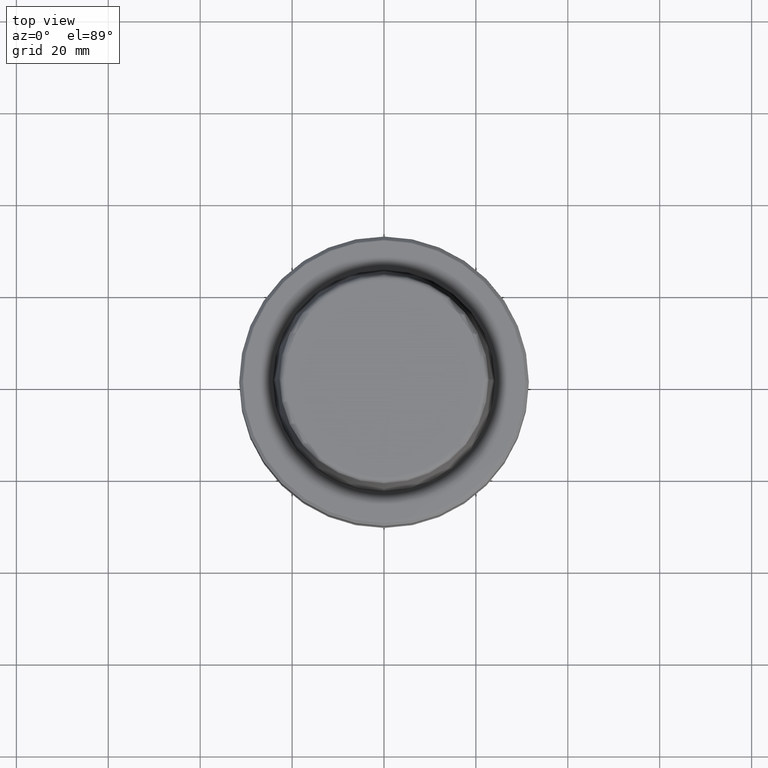
[diagram: clean part render]
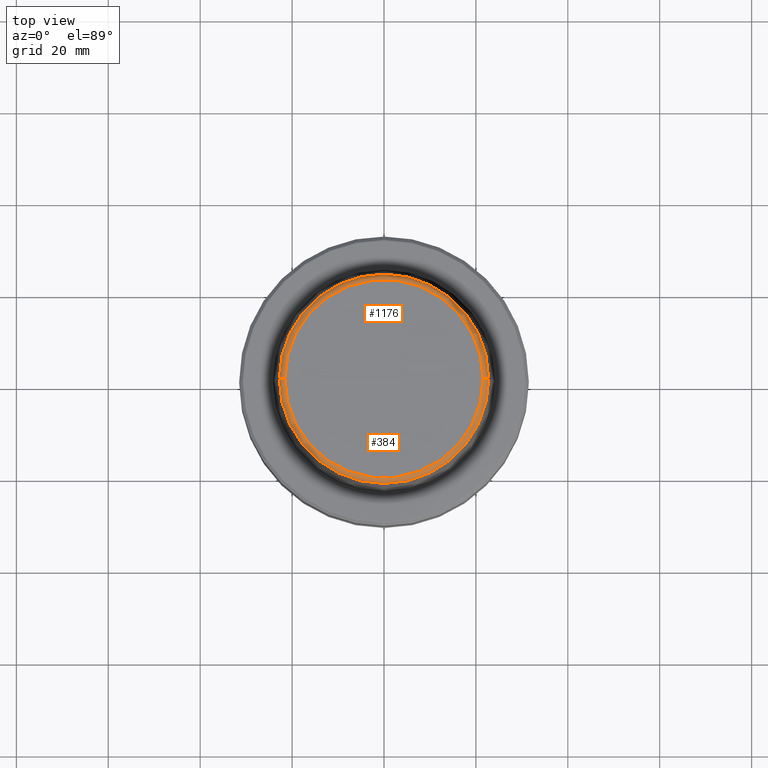
[diagram: same view with one multi-face feature highlighted, each face labeled with its STEP entity id]
A machine part, top view. The highlighted faces form ONE feature: a constant-radius fillet chain: 2 tangent blend faces with common blend radius 1.2 mm. The faces share edges in the B-rep.
Their STEP definitions:
[1] entity #1176 (Torus):
#46 = AXIS2_PLACEMENT_3D ( 'NONE', #935, #1028, #74 ) ;
#74 = DIRECTION ( 'NONE',  ( 1.000000000000000000, 0.0000000000000000000, 0.0000000000000000000 ) ) ;
#78 = CARTESIAN_POINT ( 'NONE',  ( -22.77957961851797100, 0.0000000000000000000, 30.76004333261571900 ) ) ;
#231 = VERTEX_POINT ( 'NONE', #1076 ) ;
#270 = FACE_OUTER_BOUND ( 'NONE', #586, .T. ) ;
#311 = ORIENTED_EDGE ( 'NONE', *, *, #1258, .F. ) ;
#336 = CIRCLE ( 'NONE', #46, 21.58108272732117100 ) ;
#358 = DIRECTION ( 'NONE',  ( 0.0000000000000000000, -1.000000000000000000, 0.0000000000000000000 ) ) ;
#372 = VERTEX_POINT ( 'NONE', #78 ) ;
#516 = VERTEX_POINT ( 'NONE', #1276 ) ;
#529 = DIRECTION ( 'NONE',  ( -1.000000000000000000, 1.224646799147353200E-016, 0.0000000000000000000 ) ) ;
#551 = CARTESIAN_POINT ( 'NONE',  ( 0.0000000000000000000, 0.0000000000000000000, 30.69999999999999200 ) ) ;
#581 = EDGE_CURVE ( 'NONE', #372, #981, #1251, .T. ) ;
#586 = EDGE_LOOP ( 'NONE', ( #1096, #928, #965, #311 ) ) ;
#684 = DIRECTION ( 'NONE',  ( 1.224646799147353200E-016, 1.000000000000000000, 0.0000000000000000000 ) ) ;
#691 = DIRECTION ( 'NONE',  ( -0.0000000000000000000, -0.0000000000000000000, 1.000000000000000000 ) ) ;
#694 = CIRCLE ( 'NONE', #730, 1.200000000000003100 ) ;
#730 = AXIS2_PLACEMENT_3D ( 'NONE', #938, #358, #1039 ) ;
#738 = EDGE_CURVE ( 'NONE', #231, #372, #908, .T. ) ;
#789 = CARTESIAN_POINT ( 'NONE',  ( -21.58108272732117100, 2.642920388414810300E-015, 30.69999999999999200 ) ) ;
#814 = CARTESIAN_POINT ( 'NONE',  ( 0.0000000000000000000, 0.0000000000000000000, 30.76004333261571900 ) ) ;
#840 = CARTESIAN_POINT ( 'NONE',  ( -21.58108272732117100, 2.716307157494421400E-015, 31.89999999999999900 ) ) ;
#852 = DIRECTION ( 'NONE',  ( 1.000000000000000000, 0.0000000000000000000, 0.0000000000000000000 ) ) ;
#903 = AXIS2_PLACEMENT_3D ( 'NONE', #789, #684, #529 ) ;
#908 = CIRCLE ( 'NONE', #933, 22.77957961851797100 ) ;
#928 = ORIENTED_EDGE ( 'NONE', *, *, #581, .T. ) ;
#933 = AXIS2_PLACEMENT_3D ( 'NONE', #814, #1101, #1058 ) ;
#935 = CARTESIAN_POINT ( 'NONE',  ( 0.0000000000000000000, 0.0000000000000000000, 31.89999999999999900 ) ) ;
#938 = CARTESIAN_POINT ( 'NONE',  ( 21.58108272732117100, 0.0000000000000000000, 30.69999999999999200 ) ) ;
#965 = ORIENTED_EDGE ( 'NONE', *, *, #1163, .F. ) ;
#981 = VERTEX_POINT ( 'NONE', #840 ) ;
#1028 = DIRECTION ( 'NONE',  ( -0.0000000000000000000, -0.0000000000000000000, 1.000000000000000000 ) ) ;
#1039 = DIRECTION ( 'NONE',  ( 0.0000000000000000000, 0.0000000000000000000, -1.000000000000000000 ) ) ;
#1051 = TOROIDAL_SURFACE ( 'NONE', #1059, 21.58108272732117100, 1.200000000000003100 ) ;
#1058 = DIRECTION ( 'NONE',  ( 1.000000000000000000, 0.0000000000000000000, 0.0000000000000000000 ) ) ;
#1059 = AXIS2_PLACEMENT_3D ( 'NONE', #551, #691, #852 ) ;
#1076 = CARTESIAN_POINT ( 'NONE',  ( 22.77957961851797100, 2.874852597157249900E-015, 30.76004333261571900 ) ) ;
#1096 = ORIENTED_EDGE ( 'NONE', *, *, #738, .T. ) ;
#1101 = DIRECTION ( 'NONE',  ( -0.0000000000000000000, -0.0000000000000000000, 1.000000000000000000 ) ) ;
#1163 = EDGE_CURVE ( 'NONE', #516, #981, #336, .T. ) ;
#1176 = ADVANCED_FACE ( 'NONE', ( #270 ), #1051, .T. ) ;
#1251 = CIRCLE ( 'NONE', #903, 1.200000000000003100 ) ;
#1258 = EDGE_CURVE ( 'NONE', #231, #516, #694, .T. ) ;
#1276 = CARTESIAN_POINT ( 'NONE',  ( 21.58108272732117100, 0.0000000000000000000, 31.89999999999999900 ) ) ;
[2] entity #384 (Torus):
#19 = EDGE_LOOP ( 'NONE', ( #883, #280, #341, #786 ) ) ;
#28 = DIRECTION ( 'NONE',  ( -0.0000000000000000000, -0.0000000000000000000, 1.000000000000000000 ) ) ;
#39 = CARTESIAN_POINT ( 'NONE',  ( 0.0000000000000000000, 0.0000000000000000000, 31.89999999999999900 ) ) ;
#78 = CARTESIAN_POINT ( 'NONE',  ( -22.77957961851797100, 0.0000000000000000000, 30.76004333261571900 ) ) ;
#97 = CARTESIAN_POINT ( 'NONE',  ( 0.0000000000000000000, 0.0000000000000000000, 30.76004333261571900 ) ) ;
#108 = AXIS2_PLACEMENT_3D ( 'NONE', #39, #28, #857 ) ;
#231 = VERTEX_POINT ( 'NONE', #1076 ) ;
#252 = DIRECTION ( 'NONE',  ( -0.0000000000000000000, -0.0000000000000000000, 1.000000000000000000 ) ) ;
#280 = ORIENTED_EDGE ( 'NONE', *, *, #444, .T. ) ;
#341 = ORIENTED_EDGE ( 'NONE', *, *, #1258, .T. ) ;
#358 = DIRECTION ( 'NONE',  ( 0.0000000000000000000, -1.000000000000000000, 0.0000000000000000000 ) ) ;
#372 = VERTEX_POINT ( 'NONE', #78 ) ;
#377 = DIRECTION ( 'NONE',  ( 1.000000000000000000, 0.0000000000000000000, 0.0000000000000000000 ) ) ;
#384 = ADVANCED_FACE ( 'NONE', ( #549 ), #806, .T. ) ;
#444 = EDGE_CURVE ( 'NONE', #372, #231, #448, .T. ) ;
#448 = CIRCLE ( 'NONE', #997, 22.77957961851797100 ) ;
#496 = CARTESIAN_POINT ( 'NONE',  ( 0.0000000000000000000, 0.0000000000000000000, 30.69999999999999200 ) ) ;
#509 = AXIS2_PLACEMENT_3D ( 'NONE', #496, #687, #377 ) ;
#516 = VERTEX_POINT ( 'NONE', #1276 ) ;
#529 = DIRECTION ( 'NONE',  ( -1.000000000000000000, 1.224646799147353200E-016, 0.0000000000000000000 ) ) ;
#549 = FACE_OUTER_BOUND ( 'NONE', #19, .T. ) ;
#581 = EDGE_CURVE ( 'NONE', #372, #981, #1251, .T. ) ;
#590 = CIRCLE ( 'NONE', #108, 21.58108272732117100 ) ;
#684 = DIRECTION ( 'NONE',  ( 1.224646799147353200E-016, 1.000000000000000000, 0.0000000000000000000 ) ) ;
#687 = DIRECTION ( 'NONE',  ( -0.0000000000000000000, -0.0000000000000000000, 1.000000000000000000 ) ) ;
#694 = CIRCLE ( 'NONE', #730, 1.200000000000003100 ) ;
#730 = AXIS2_PLACEMENT_3D ( 'NONE', #938, #358, #1039 ) ;
#786 = ORIENTED_EDGE ( 'NONE', *, *, #1158, .F. ) ;
#789 = CARTESIAN_POINT ( 'NONE',  ( -21.58108272732117100, 2.642920388414810300E-015, 30.69999999999999200 ) ) ;
#806 = TOROIDAL_SURFACE ( 'NONE', #509, 21.58108272732117100, 1.200000000000003100 ) ;
#840 = CARTESIAN_POINT ( 'NONE',  ( -21.58108272732117100, 2.716307157494421400E-015, 31.89999999999999900 ) ) ;
#857 = DIRECTION ( 'NONE',  ( 1.000000000000000000, 0.0000000000000000000, 0.0000000000000000000 ) ) ;
#883 = ORIENTED_EDGE ( 'NONE', *, *, #581, .F. ) ;
#903 = AXIS2_PLACEMENT_3D ( 'NONE', #789, #684, #529 ) ;
#938 = CARTESIAN_POINT ( 'NONE',  ( 21.58108272732117100, 0.0000000000000000000, 30.69999999999999200 ) ) ;
#981 = VERTEX_POINT ( 'NONE', #840 ) ;
#997 = AXIS2_PLACEMENT_3D ( 'NONE', #97, #252, #1151 ) ;
#1039 = DIRECTION ( 'NONE',  ( 0.0000000000000000000, 0.0000000000000000000, -1.000000000000000000 ) ) ;
#1076 = CARTESIAN_POINT ( 'NONE',  ( 22.77957961851797100, 2.874852597157249900E-015, 30.76004333261571900 ) ) ;
#1151 = DIRECTION ( 'NONE',  ( 1.000000000000000000, 0.0000000000000000000, 0.0000000000000000000 ) ) ;
#1158 = EDGE_CURVE ( 'NONE', #981, #516, #590, .T. ) ;
#1251 = CIRCLE ( 'NONE', #903, 1.200000000000003100 ) ;
#1258 = EDGE_CURVE ( 'NONE', #231, #516, #694, .T. ) ;
#1276 = CARTESIAN_POINT ( 'NONE',  ( 21.58108272732117100, 0.0000000000000000000, 31.89999999999999900 ) ) ;